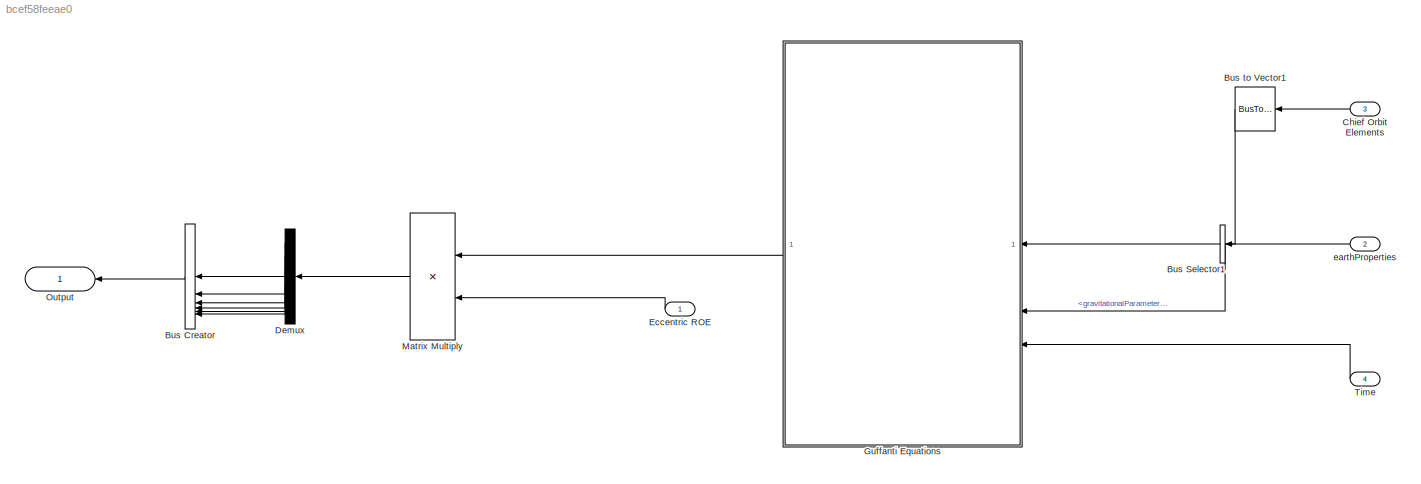
MODEL slx_bcef58feeae0
KIND model
CONFIG AbsTol = auto
CONFIG EnableMultiTasking = off
CONFIG FixedStep = dt
CONFIG MaxStep = auto
CONFIG MinStep = auto
CONFIG RelTol = 1e-3
CONFIG SampleTimeConstraint = Unconstrained
CONFIG SolverName = ode4
CONFIG StartTime = 0.0
CONFIG StopTime = 10.0
BLOCK [BusCreator] Bus Creator
  DisplayOption = bar
  InheritFromInputs = off
  Inputs = 6
  NonVirtualBus = on
  OutDataTypeStr = Bus: relativeCartesianState
BLOCK [BusSelector] Bus Selector1
  OutputSignals = gravitationalParameter_m3_s2
BLOCK [BusToVector] Bus to Vector1
BLOCK [Inport] Chief Orbit Elements
  OutDataTypeStr = Bus: meanOrbitElements
  Port = 3
BLOCK [Demux] Demux
  Outputs = 6
BLOCK [Inport] Eccentric ROE
  PortDimensions = 6
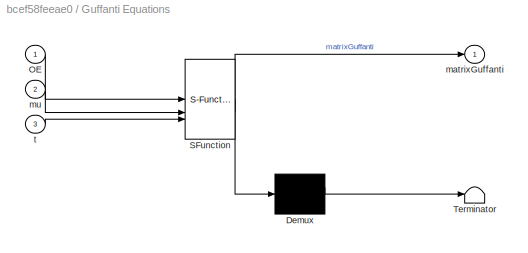
BLOCK [SubSystem] Guffanti Equations
  ErrorFcn = Stateflow.Translate.translate
  LibrarySourceBlock = simulink/User-Defined\nFunctions/MATLAB Function
  PermitHierarchicalResolution = ExplicitOnly
  SFBlockType = MATLAB Function
  TreatAsAtomicUnit = on
BLOCK [Demux] Guffanti Equations/ Demux 
  Outputs = 1
BLOCK [S-Function] Guffanti Equations/ SFunction 
  EnableBusSupport = on
  FunctionName = sf_sfun
  PortCounts = [3 2]
  SFcnIsStateOwnerBlock = off
  SFunctionDeploymentMode = off
  Tag = Stateflow S-Function 2
BLOCK [Terminator] Guffanti Equations/ Terminator 
BLOCK [Inport] Guffanti Equations/OE
BLOCK [Outport] Guffanti Equations/matrixGuffanti
BLOCK [Inport] Guffanti Equations/mu
  Port = 2
BLOCK [Inport] Guffanti Equations/t
  Port = 3
BLOCK [Product] Matrix Multiply
  Multiplication = Matrix(*)
BLOCK [Outport] Output
  OutDataTypeStr = Bus: relativeCartesianState
BLOCK [Inport] Time
  Port = 4
BLOCK [Inport] earthProperties
  OutDataTypeStr = Bus: earthProperties
  Port = 2
LINE Bus Creator:1 -> Output:1
LINE Bus Selector1:1 -> Guffanti Equations:2
LINE Bus to Vector1:1 -> Guffanti Equations:1
LINE Chief Orbit Elements:1 -> Bus to Vector1:1
LINE Demux:1 -> Bus Creator:1
LINE Demux:2 -> Bus Creator:2
LINE Demux:3 -> Bus Creator:3
LINE Demux:4 -> Bus Creator:4
LINE Demux:5 -> Bus Creator:5
LINE Demux:6 -> Bus Creator:6
LINE Eccentric ROE:1 -> Matrix Multiply:2
LINE Guffanti Equations:1 -> Matrix Multiply:1
LINE Matrix Multiply:1 -> Demux:1
LINE Time:1 -> Guffanti Equations:3
LINE earthProperties:1 -> Bus Selector1:1
CHART Guffanti Equations states=1 transitions=1
  STATE_LABEL 'eML_blk_kernel()'
  STATE_LABEL 'SCRIPT:\nfunction matrixGuffanti = cartesianGuffantiSolution(OE, mu, t)\n\nmatrixGuffanti = cartesianGuffantiSolution(OE, t, mu);\n\nend\n'
CHART  states=0 transitions=0
